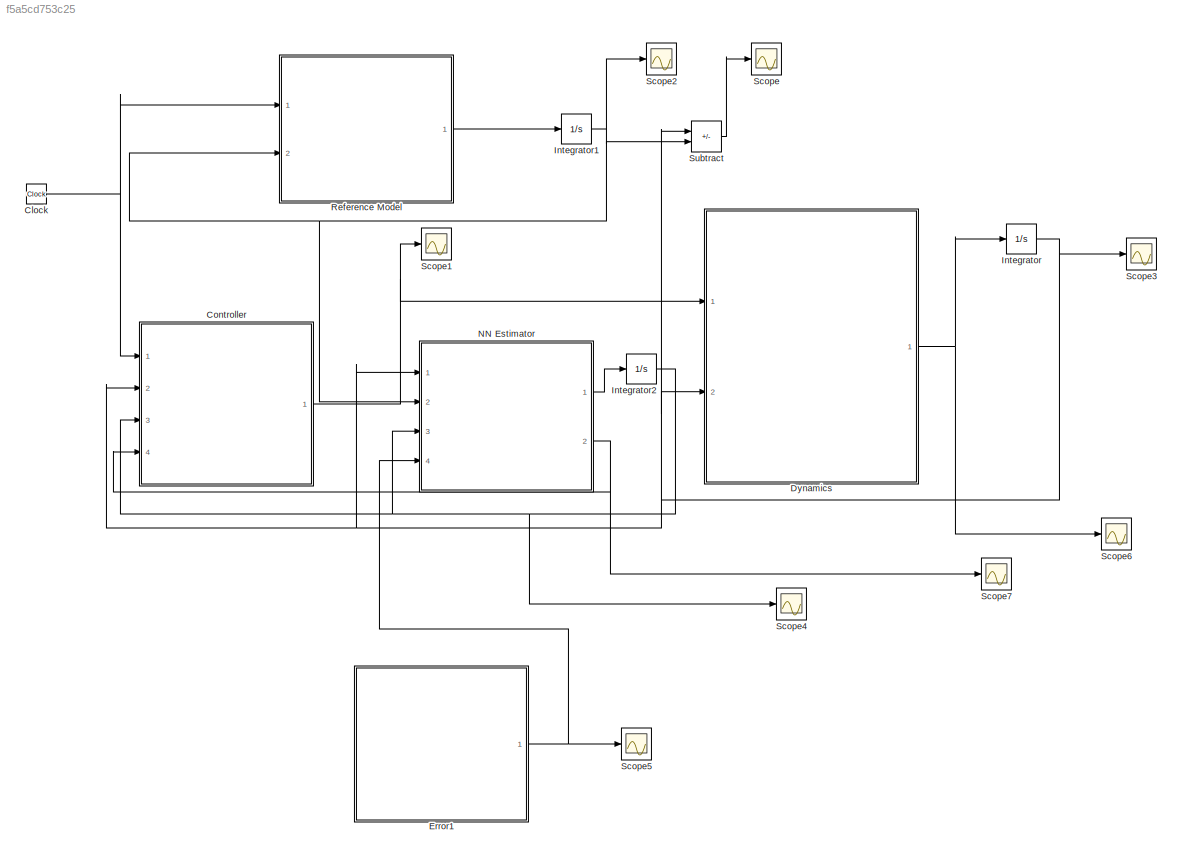
MODEL slx_f5a5cd753c25
KIND model
CONFIG AbsTol = auto
CONFIG EnableMultiTasking = on
CONFIG FixedStep = auto
CONFIG MaxStep = auto
CONFIG MinStep = auto
CONFIG RelTol = 1e-3
CONFIG SampleTimeConstraint = Unconstrained
CONFIG SolverName = ode45
CONFIG StartTime = 0.0
CONFIG StopTime = 100
BLOCK [Clock] Clock
  Decimation = 50
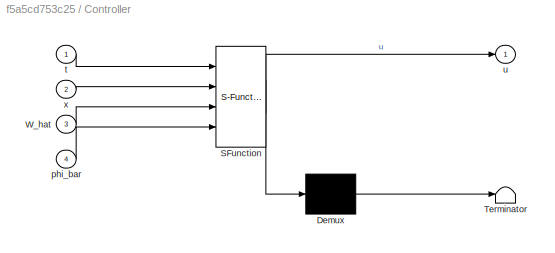
BLOCK [SubSystem] Controller
  ErrorFcn = Stateflow.Translate.translate
  PermitHierarchicalResolution = ExplicitOnly
  Ports = [4, 1]
  RequestExecContextInheritance = off
  SFBlockType = MATLAB Function
  TreatAsAtomicUnit = on
BLOCK [Demux] Controller/ Demux 
  Outputs = 1
  Ports = [1, 1]
BLOCK [S-Function] Controller/ SFunction 
  EnableBusSupport = on
  FunctionName = sf_sfun
  PortCounts = [4 2]
  Ports = [4, 2]
  SFcnIsStateOwnerBlock = off
  SFunctionDeploymentMode = off
  Tag = Stateflow S-Function 1
BLOCK [Terminator] Controller/ Terminator 
BLOCK [Inport] Controller/W_hat
  Port = 3
BLOCK [Inport] Controller/phi_bar
  Port = 4
BLOCK [Inport] Controller/t
BLOCK [Outport] Controller/u
BLOCK [Inport] Controller/x
  Port = 2
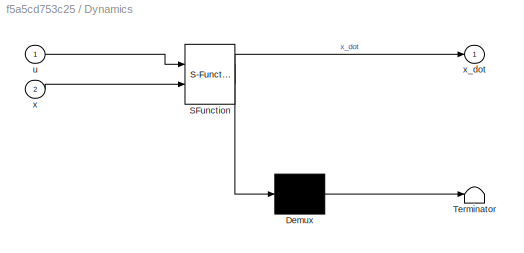
BLOCK [SubSystem] Dynamics
  ErrorFcn = Stateflow.Translate.translate
  PermitHierarchicalResolution = ExplicitOnly
  Ports = [2, 1]
  RequestExecContextInheritance = off
  SFBlockType = MATLAB Function
  TreatAsAtomicUnit = on
BLOCK [Demux] Dynamics/ Demux 
  Outputs = 1
  Ports = [1, 1]
BLOCK [S-Function] Dynamics/ SFunction 
  EnableBusSupport = on
  FunctionName = sf_sfun
  PortCounts = [2 2]
  Ports = [2, 2]
  SFcnIsStateOwnerBlock = off
  SFunctionDeploymentMode = off
  Tag = Stateflow S-Function 2
BLOCK [Terminator] Dynamics/ Terminator 
BLOCK [Inport] Dynamics/u
BLOCK [Inport] Dynamics/x
  Port = 2
BLOCK [Outport] Dynamics/x_dot
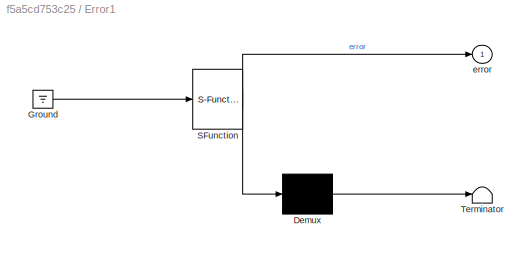
BLOCK [SubSystem] Error1
  ErrorFcn = Stateflow.Translate.translate
  PermitHierarchicalResolution = ExplicitOnly
  Ports = [0, 1]
  RequestExecContextInheritance = off
  SFBlockType = MATLAB Function
  TreatAsAtomicUnit = on
BLOCK [Demux] Error1/ Demux 
  Outputs = 1
  Ports = [1, 1]
BLOCK [Ground] Error1/ Ground 
BLOCK [S-Function] Error1/ SFunction 
  EnableBusSupport = on
  FunctionName = sf_sfun
  PortCounts = [1 2]
  Ports = [1, 2]
  SFcnIsStateOwnerBlock = off
  SFunctionDeploymentMode = off
  Tag = Stateflow S-Function 6
BLOCK [Terminator] Error1/ Terminator 
BLOCK [Outport] Error1/error
BLOCK [Integrator] Integrator
  InitialCondition = [-1;1]
  Ports = [1, 1]
BLOCK [Integrator] Integrator1
  InitialCondition = [0;0]
  Ports = [1, 1]
BLOCK [Integrator] Integrator2
  InitialCondition = zeros(6,1)
  Ports = [1, 1]
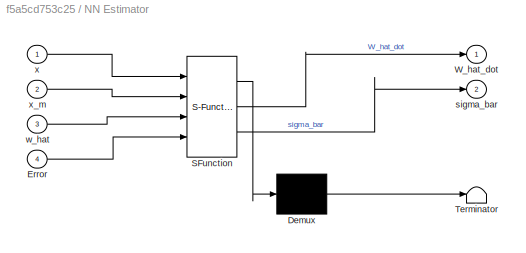
BLOCK [SubSystem] NN Estimator
  ErrorFcn = Stateflow.Translate.translate
  PermitHierarchicalResolution = ExplicitOnly
  Ports = [4, 2]
  RequestExecContextInheritance = off
  SFBlockType = MATLAB Function
  TreatAsAtomicUnit = on
BLOCK [Demux] NN Estimator/ Demux 
  Outputs = 1
  Ports = [1, 1]
BLOCK [S-Function] NN Estimator/ SFunction 
  EnableBusSupport = on
  FunctionName = sf_sfun
  PortCounts = [4 3]
  Ports = [4, 3]
  SFcnIsStateOwnerBlock = off
  SFunctionDeploymentMode = off
  Tag = Stateflow S-Function 3
BLOCK [Terminator] NN Estimator/ Terminator 
BLOCK [Inport] NN Estimator/Error
  Port = 4
BLOCK [Outport] NN Estimator/W_hat_dot
BLOCK [Outport] NN Estimator/sigma_bar
  Port = 2
BLOCK [Inport] NN Estimator/w_hat
  Port = 3
BLOCK [Inport] NN Estimator/x
BLOCK [Inport] NN Estimator/x_m
  Port = 2
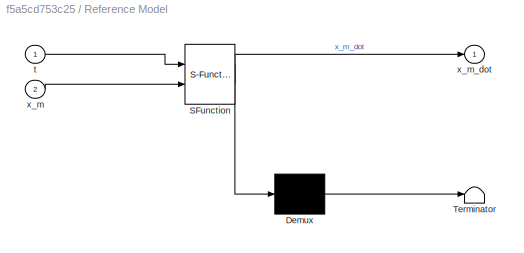
BLOCK [SubSystem] Reference Model
  ErrorFcn = Stateflow.Translate.translate
  PermitHierarchicalResolution = ExplicitOnly
  Ports = [2, 1]
  RequestExecContextInheritance = off
  SFBlockType = MATLAB Function
  TreatAsAtomicUnit = on
BLOCK [Demux] Reference Model/ Demux 
  Outputs = 1
  Ports = [1, 1]
BLOCK [S-Function] Reference Model/ SFunction 
  EnableBusSupport = on
  FunctionName = sf_sfun
  PortCounts = [2 2]
  Ports = [2, 2]
  SFcnIsStateOwnerBlock = off
  SFunctionDeploymentMode = off
  Tag = Stateflow S-Function 4
BLOCK [Terminator] Reference Model/ Terminator 
BLOCK [Inport] Reference Model/t
BLOCK [Inport] Reference Model/x_m
  Port = 2
BLOCK [Outport] Reference Model/x_m_dot
BLOCK [Scope] Scope
  Floating = off
  NumInputPorts = 1
  Ports = [1]
  ScopeSpecificationString = Simulink.scopes.TimeScopeBlockCfg('CurrentConfiguration', extmgr.ConfigurationSet(extmgr.Configuration('Core','General UI',true),extmgr.Configuration('Core','Source UI',true),extmgr.Configuration('Sources','WiredSimulink',true,'DataLoggingLimitDataPoints',true,'DataLoggingSaveFormat','Array','DataLoggingDecimation','1','DataLoggingDecimateData',true),extmgr.Configuration('Visuals','Time Domain',tr...<+1668ch>
BLOCK [Scope] Scope1
  Floating = off
  NumInputPorts = 1
  Ports = [1]
  ScopeSpecificationString = Simulink.scopes.TimeScopeBlockCfg('CurrentConfiguration', extmgr.ConfigurationSet(extmgr.Configuration('Core','General UI',true),extmgr.Configuration('Core','Source UI',true),extmgr.Configuration('Sources','WiredSimulink',true,'DataLoggingVariableName','ScopeData1','DataLoggingLimitDataPoints',true,'DataLoggingSaveFormat','Array','DataLoggingDecimation','1','DataLoggingDecimateData',true),extmgr.C...<+1996ch>
BLOCK [Scope] Scope2
  Floating = off
  NumInputPorts = 1
  Ports = [1]
  ScopeSpecificationString = Simulink.scopes.TimeScopeBlockCfg('CurrentConfiguration', extmgr.ConfigurationSet(extmgr.Configuration('Core','General UI',true),extmgr.Configuration('Core','Source UI',true),extmgr.Configuration('Sources','WiredSimulink',true,'DataLoggingVariableName','ScopeData2','DataLoggingLimitDataPoints',true,'DataLoggingSaveFormat','Array','DataLoggingDecimation','1','DataLoggingDecimateData',true),extmgr.C...<+1689ch>
BLOCK [Scope] Scope3
  Floating = off
  NumInputPorts = 1
  Ports = [1]
  ScopeSpecificationString = Simulink.scopes.TimeScopeBlockCfg('CurrentConfiguration', extmgr.ConfigurationSet(extmgr.Configuration('Core','General UI',true),extmgr.Configuration('Core','Source UI',true),extmgr.Configuration('Sources','WiredSimulink',true,'DataLoggingVariableName','ScopeData1','DataLoggingLimitDataPoints',true,'DataLoggingSaveFormat','Array','DataLoggingDecimation','1','DataLoggingDecimateData',true),extmgr.C...<+2050ch>
BLOCK [Scope] Scope4
  Floating = off
  NumInputPorts = 1
  Ports = [1]
  ScopeSpecificationString = Simulink.scopes.TimeScopeBlockCfg('CurrentConfiguration', extmgr.ConfigurationSet(extmgr.Configuration('Core','General UI',true),extmgr.Configuration('Core','Source UI',true),extmgr.Configuration('Sources','WiredSimulink',true,'DataLoggingVariableName','ScopeData2','DataLoggingLimitDataPoints',true,'DataLoggingSaveFormat','Array','DataLoggingDecimation','1','DataLoggingDecimateData',true),extmgr.C...<+1749ch>
BLOCK [Scope] Scope5
  Floating = off
  NumInputPorts = 1
  Ports = [1]
  ScopeSpecificationString = Simulink.scopes.TimeScopeBlockCfg('CurrentConfiguration', extmgr.ConfigurationSet(extmgr.Configuration('Core','General UI',true),extmgr.Configuration('Core','Source UI',true),extmgr.Configuration('Sources','WiredSimulink',true,'DataLoggingVariableName','ScopeData1','DataLoggingLimitDataPoints',true,'DataLoggingSaveFormat','Array','DataLoggingDecimation','1','DataLoggingDecimateData',true),extmgr.C...<+1763ch>
BLOCK [Scope] Scope6
  Floating = off
  NumInputPorts = 1
  Ports = [1]
  ScopeSpecificationString = Simulink.scopes.TimeScopeBlockCfg('CurrentConfiguration', extmgr.ConfigurationSet(extmgr.Configuration('Core','General UI',true),extmgr.Configuration('Core','Source UI',true),extmgr.Configuration('Sources','WiredSimulink',true,'DataLoggingVariableName','ScopeData2','DataLoggingLimitDataPoints',true,'DataLoggingSaveFormat','Array','DataLoggingDecimation','1','DataLoggingDecimateData',true),extmgr.C...<+2042ch>
BLOCK [Scope] Scope7
  Floating = off
  NumInputPorts = 1
  Ports = [1]
  ScopeSpecificationString = Simulink.scopes.TimeScopeBlockCfg('CurrentConfiguration', extmgr.ConfigurationSet(extmgr.Configuration('Core','General UI',true),extmgr.Configuration('Core','Source UI',true),extmgr.Configuration('Sources','WiredSimulink',true,'DataLoggingVariableName','ScopeData3','DataLoggingLimitDataPoints',true,'DataLoggingSaveFormat','Array','DataLoggingDecimation','1','DataLoggingDecimateData',true),extmgr.C...<+2178ch>
BLOCK [Sum] Subtract
  IconShape = rectangular
  Inputs = +-
  NameLocation = top
  Ports = [2, 1]
NET Clock:1 -> Controller:1, Reference Model:1
NET Controller:1 -> Dynamics:1, Scope1:1
NET Dynamics:1 -> Integrator:1, Scope6:1
NET Error1:1 -> NN Estimator:4, Scope5:1
NET Integrator1:1 -> NN Estimator:2, Reference Model:2, Scope2:1, Subtract:2
NET Integrator2:1 -> Controller:3, NN Estimator:3, Scope4:1
NET Integrator:1 -> Controller:2, Dynamics:2, NN Estimator:1, Scope3:1, Subtract:1
LINE NN Estimator:1 -> Integrator2:1
NET NN Estimator:2 -> Controller:4, Scope7:1
LINE Reference Model:1 -> Integrator1:1
LINE Subtract:1 -> Scope:1
note: NET lines group one-source signal fan-out (src -> all destinations, sorted); 1:1 wires keep LINE
CHART Controller states=1 transitions=1
  STATE_LABEL 'eML_blk_kernel()'
  STATE_LABEL "SCRIPT:\nfunction u  = controller(t,x,W_hat, phi_bar)\n\n%r=10;\n%r=exp(-t);\nr=sin(t);\n%r=2*sin(t);\n\nk_x=[-2/3 -1/3]'; % note that the linear control gain is directly chosen instead of adapting with an assumption of $A$ matrix to be known\n\n\nu=k_x'*x+r-W_hat'*phi_bar;\n\nend"
CHART Dynamics states=1 transitions=1
  STATE_LABEL 'eML_blk_kernel()'
  STATE_LABEL 'SCRIPT:\nfunction x_dot   = dynamics(u,x)\n%#codegen\nL_delta_a=3;\nA=[0 1; 0 0];\nB=[0;L_delta_a];\nW0=0.8;\nW1=0.2314;\nW2=0.6918;\nW3=-0.6245;\nW4=0.0095;\nW5=0.0214;\n\ntheta=x(1,1);\np=x(2,1);\n\ndelta=W0+W1*theta+W2*p+W3*abs(theta)*p+W4*abs(p)*p+W5*theta^3;\nx_dot=A*x+B*(u+delta/L_delta_a);\nend'
CHART NN Estimator states=1 transitions=1
  STATE_LABEL 'eML_blk_kernel()'
  STATE_LABEL "SCRIPT:\nfunction [W_hat_dot, sigma_bar]   = NN_estimator(x,x_m, w_hat, Error)\n\ne=x-x_m; % tracking error \n\n% Omega = [1, 1, 1, 1, 1, 1, 1, 1, 1, 1, 1]';\n% Omega = \nL=5; % number of neurons\n% L = 10;\nGamma=(3.5)*eye(L+1);\nsigma=zeros(L,1);\nVr=5*eye(size(x,1)); % variance of RBF\n\nC=[0.6294   -0.7460    0.2647   -0.4430    0.9150;\n    0.8116    0.8268   -0.8049    0.0938    0.9298];  % for L=5\n\n% C=[...<+2922ch>"
CHART Reference Model states=1 transitions=1
  STATE_LABEL 'eML_blk_kernel()'
  STATE_LABEL 'SCRIPT:\nfunction x_m_dot  = reference(t,x_m)\nam1=-2;\nam2=-1;\nL_delta_a=3;\n%r=exp(-t);\nr=sin(t);\n%r=2*sin(t);\nA_m=[0 1; am1 am2];\nB_m=[0; L_delta_a];\nx_m_dot=A_m*x_m+B_m*r;\n'
CHART Error1 states=1 transitions=1
  STATE_LABEL 'eML_blk_kernel()'
  STATE_LABEL 'SCRIPT:\nfunction error = Error2\n% function error = Error2(x_dot, x, u, sigma_bar)\n% function error = Error2(x_dot, x, u, sigma_bar)\n\nA=[0 1; 0 0];\nB=[0;3];\n\nW0=0.8;\nW1=0.2314;\nW2=0.6918;\nW3=-0.6245;\nW4=0.0095;\nW5=0.0214;\n\nW = [W0 W1 W2 W3 W4 W5];\n\n% error = x_dot/B - A*x/B - u - W*sigma_bar;\nu_1 = -1.055e-01;\nu_2 = -5.645e-01;\nu_3 = 3.984e-01;\nu_4 = -1.063e+00;\nu_5 = 1.120e-01;\nu_6 = -6.223e-01;\n\n...<+2048ch>'
CHART  states=0 transitions=0
CHART  states=0 transitions=0
CHART  states=0 transitions=0
CHART  states=0 transitions=0
CHART  states=0 transitions=0
